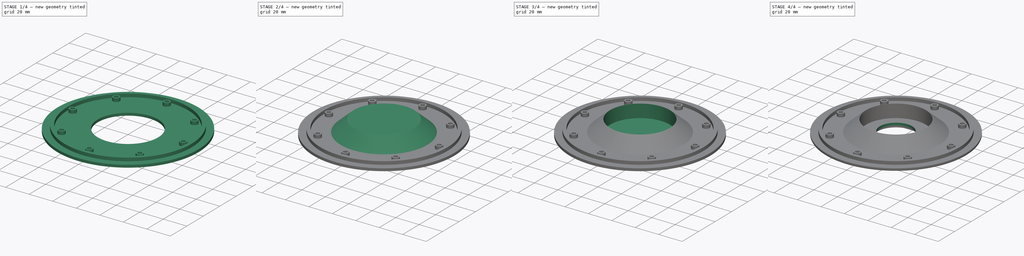
[diagram: build sequence overview — one tinted view per stage of 4, left to right]
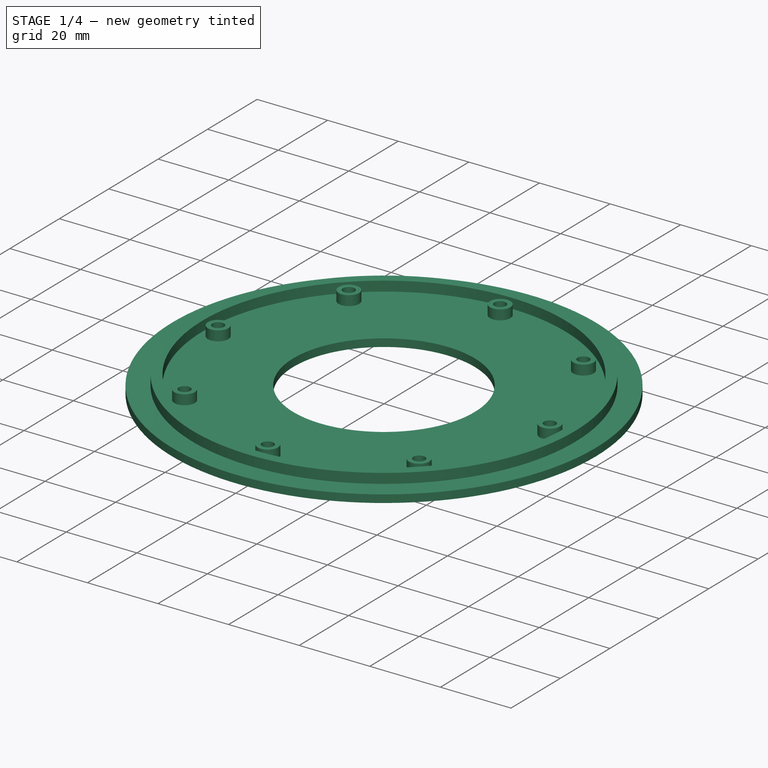
[diagram: stage 1 of 4 — iso view after this stage's code; geometry added in this stage tinted green]
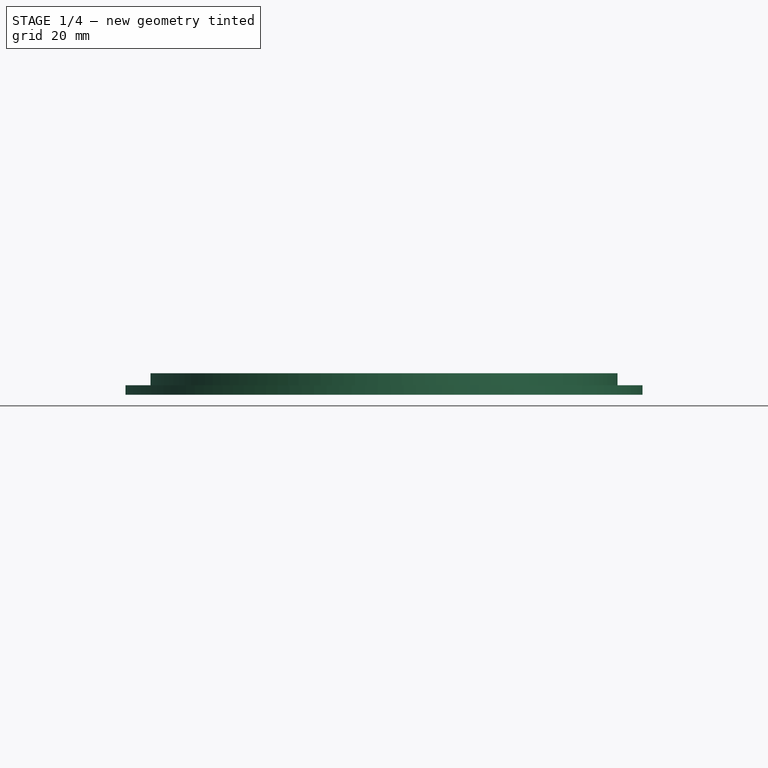
[diagram: stage 1 of 4 — front view after this stage's code; geometry added in this stage tinted green]
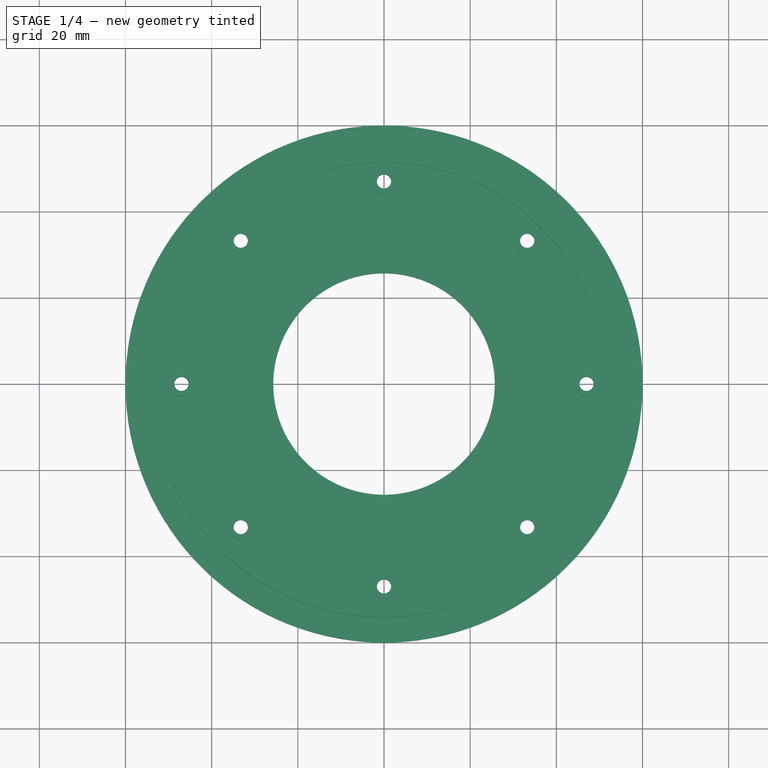
[diagram: stage 1 of 4 — top view after this stage's code; geometry added in this stage tinted green]
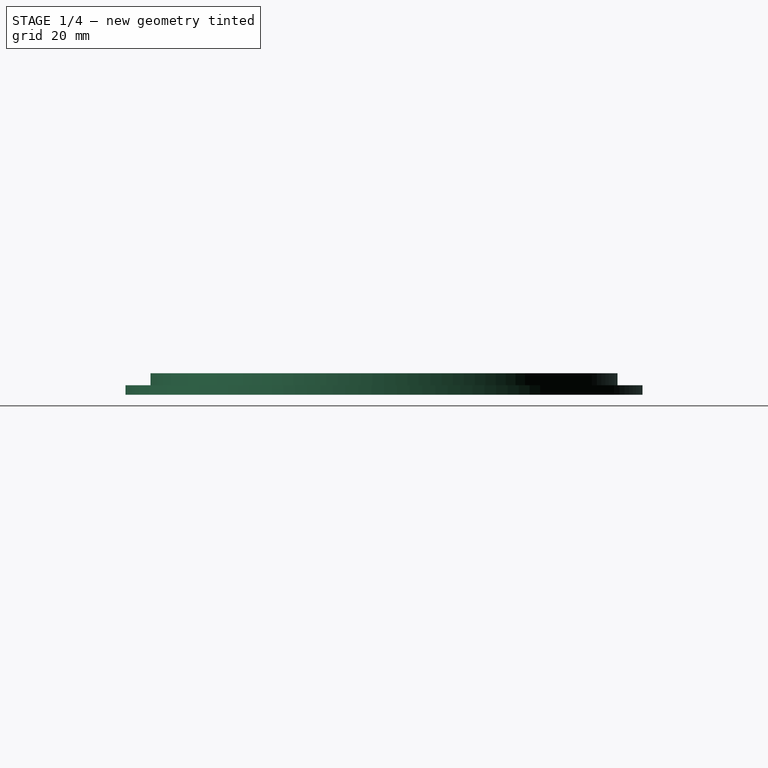
[diagram: stage 1 of 4 — right view after this stage's code; geometry added in this stage tinted green]
FCSTD DOCUMENT  (FreeCAD 0.20R29177 +426 (Git))
Label: feeder-top
License: All rights reserved
LicenseURL: http://en.wikipedia.org/wiki/All_rights_reserved
objects: PartDesign::SubtractiveCylinder×3, Sketcher::SketchObject×2, PartDesign::Pad×2, PartDesign::AdditiveCylinder×2, PartDesign::AdditiveCone×1, PartDesign::SubtractiveCone×1, PartDesign::Fillet×1, PartDesign::Body×1
note: 23 computed .brp shape members not serialized (recipe doc carries the construction recipe); baked Part::Feature solids carry a one-line shape summary decoded from their .brp

FEATURE [Sketcher::SketchObject] Sketch
  FullyConstrained = true
  MapMode = 5
  Support = -> [XY_Plane]
  expr: Constraints[43] = 94 / 2
  sketch-geometry (18):
    g0: Circle CenterX=0 CenterY=0 CenterZ=0 NormalX=0 NormalY=0 NormalZ=1 AngleXU=0 Radius=60
    g1: Circle CenterX=0 CenterY=0 CenterZ=0 NormalX=0 NormalY=0 NormalZ=1 AngleXU=0 Radius=25.7
    g2: LineSegment StartX=0 StartY=0 StartZ=0 EndX=0 EndY=47 EndZ=0
    g3: LineSegment StartX=0 StartY=0 StartZ=0 EndX=33.234 EndY=33.234 EndZ=0
    g4: LineSegment StartX=0 StartY=0 StartZ=0 EndX=47 EndY=0 EndZ=0
    g5: LineSegment StartX=0 StartY=0 StartZ=0 EndX=33.234 EndY=-33.234 EndZ=0
    g6: LineSegment StartX=0 StartY=0 StartZ=0 EndX=0 EndY=-47 EndZ=0
    g7: LineSegment StartX=0 StartY=0 StartZ=0 EndX=-33.234 EndY=-33.234 EndZ=0
    g8: LineSegment StartX=0 StartY=0 StartZ=0 EndX=-47 EndY=0 EndZ=0
    g9: LineSegment StartX=0 StartY=0 StartZ=0 EndX=-33.234 EndY=33.234 EndZ=0
    g10: Circle CenterX=0 CenterY=47 CenterZ=0 NormalX=0 NormalY=0 NormalZ=1 AngleXU=0 Radius=1.75
    g11: Circle CenterX=33.234 CenterY=33.234 CenterZ=0 NormalX=0 NormalY=0 NormalZ=1 AngleXU=0 Radius=1.75
    g12: Circle CenterX=47 CenterY=0 CenterZ=0 NormalX=0 NormalY=0 NormalZ=1 AngleXU=0 Radius=1.75
    g13: Circle CenterX=33.234 CenterY=-33.234 CenterZ=0 NormalX=0 NormalY=0 NormalZ=1 AngleXU=0 Radius=1.75
    g14: Circle CenterX=0 CenterY=-47 CenterZ=0 NormalX=0 NormalY=0 NormalZ=1 AngleXU=0 Radius=1.75
    g15: Circle CenterX=-33.234 CenterY=-33.234 CenterZ=0 NormalX=0 NormalY=0 NormalZ=1 AngleXU=0 Radius=1.75
    g16: Circle CenterX=-47 CenterY=0 CenterZ=0 NormalX=0 NormalY=0 NormalZ=1 AngleXU=0 Radius=1.75
    g17: Circle CenterX=-33.234 CenterY=33.234 CenterZ=0 NormalX=0 NormalY=0 NormalZ=1 AngleXU=0 Radius=1.75
  constraints (44):
    c: Coincident(g0,g-1)
    c: Diameter(g0) = 120
    c: Coincident(g1,g0)
    c: Diameter(g1) = 51.4
    c: Coincident(g2,g0)
    c: PointOnObject(g2,g-2)
    c: Coincident(g3,g0)
    c: Coincident(g4,g0)
    c: PointOnObject(g4,g-1)
    c: Coincident(g5,g0)
    c: Coincident(g6,g0)
    c: PointOnObject(g6,g-2)
    c: Coincident(g7,g0)
    c: Coincident(g8,g0)
    c: PointOnObject(g8,g-1)
    c: Coincident(g9,g0)
    c: Coincident(g10,g2)
    c: Coincident(g11,g3)
    c: Coincident(g12,g4)
    c: Coincident(g13,g5)
    c: Coincident(g14,g6)
    c: Coincident(g15,g7)
    c: Coincident(g16,g8)
    c: Coincident(g17,g9)
    c: Equal(g10,g11)
    c: Equal(g11,g12)
    c: Equal(g12,g13)
    c: Equal(g13,g14)
    c: Equal(g14,g15)
    c: Equal(g15,g16)
    c: Equal(g16,g17)
    c: Equal(g2,g3)
    c: Equal(g3,g4)
    c: Equal(g4,g5)
    c: Equal(g5,g6)
    c: Equal(g6,g7)
    c: Equal(g7,g8)
    c: Equal(g8,g9)
    c: Angle(g3,g2) = 0.785398
    c: Angle(g5,g4) = 0.785398
    c: Angle(g7,g6) = 0.785398
    c: Angle(g9,g8) = 0.785398
    c: Diameter(g10) = 3.5
    c: DistanceY(g2,g2) = 47
FEATURE [PartDesign::Pad] Pad
  Direction = (0,0,1)
  Length = 2.2
  Length2 = 10
  Profile = -> Sketch
  ReferenceAxis = -> Sketch [N_Axis]
  Type = 0
FEATURE [Sketcher::SketchObject] Sketch001
  FullyConstrained = true
  MapMode = 5
  Support = -> [XY_Plane]
  expr: Constraints[59] = 94 / 2
  sketch-geometry (26):
    g0: Circle CenterX=0 CenterY=0 CenterZ=0 NormalX=0 NormalY=0 NormalZ=1 AngleXU=0 Radius=54.2
    g1: Circle CenterX=0 CenterY=0 CenterZ=0 NormalX=0 NormalY=0 NormalZ=1 AngleXU=0 Radius=51.4
    g2: LineSegment StartX=0 StartY=0 StartZ=0 EndX=0 EndY=47 EndZ=0
    g3: LineSegment StartX=0 StartY=0 StartZ=0 EndX=33.234 EndY=33.234 EndZ=0
    g4: LineSegment StartX=0 StartY=0 StartZ=0 EndX=47 EndY=0 EndZ=0
    g5: LineSegment StartX=0 StartY=0 StartZ=0 EndX=33.234 EndY=-33.234 EndZ=0
    g6: LineSegment StartX=0 StartY=0 StartZ=0 EndX=0 EndY=-47 EndZ=0
    g7: LineSegment StartX=0 StartY=0 StartZ=0 EndX=-33.234 EndY=-33.234 EndZ=0
    g8: LineSegment StartX=0 StartY=0 StartZ=0 EndX=-47 EndY=0 EndZ=0
    g9: LineSegment StartX=0 StartY=0 StartZ=0 EndX=-33.234 EndY=33.234 EndZ=0
    g10: Circle CenterX=0 CenterY=47 CenterZ=0 NormalX=0 NormalY=0 NormalZ=1 AngleXU=0 Radius=1.65
    g11: Circle CenterX=0 CenterY=47 CenterZ=0 NormalX=0 NormalY=0 NormalZ=1 AngleXU=0 Radius=2.9
    g12: Circle CenterX=33.234 CenterY=33.234 CenterZ=0 NormalX=0 NormalY=0 NormalZ=1 AngleXU=0 Radius=1.65
    g13: Circle CenterX=33.234 CenterY=33.234 CenterZ=0 NormalX=0 NormalY=0 NormalZ=1 AngleXU=0 Radius=2.9
    g14: Circle CenterX=47 CenterY=0 CenterZ=0 NormalX=0 NormalY=0 NormalZ=1 AngleXU=0 Radius=1.65
    g15: Circle CenterX=47 CenterY=0 CenterZ=0 NormalX=0 NormalY=0 NormalZ=1 AngleXU=0 Radius=2.9
    g16: Circle CenterX=33.234 CenterY=-33.234 CenterZ=0 NormalX=0 NormalY=0 NormalZ=1 AngleXU=0 Radius=1.65
    g17: Circle CenterX=33.234 CenterY=-33.234 CenterZ=0 NormalX=0 NormalY=0 NormalZ=1 AngleXU=0 Radius=2.9
    g18: Circle CenterX=0 CenterY=-47 CenterZ=0 NormalX=0 NormalY=0 NormalZ=1 AngleXU=0 Radius=1.65
    g19: Circle CenterX=0 CenterY=-47 CenterZ=0 NormalX=0 NormalY=0 NormalZ=1 AngleXU=0 Radius=2.9
    g20: Circle CenterX=-33.234 CenterY=-33.234 CenterZ=0 NormalX=0 NormalY=0 NormalZ=1 AngleXU=0 Radius=1.65
    g21: Circle CenterX=-33.234 CenterY=-33.234 CenterZ=0 NormalX=0 NormalY=0 NormalZ=1 AngleXU=0 Radius=2.9
    g22: Circle CenterX=-47 CenterY=0 CenterZ=0 NormalX=0 NormalY=0 NormalZ=1 AngleXU=0 Radius=1.65
    g23: Circle CenterX=-47 CenterY=0 CenterZ=0 NormalX=0 NormalY=0 NormalZ=1 AngleXU=0 Radius=2.9
    g24: Circle CenterX=-33.234 CenterY=33.234 CenterZ=0 NormalX=0 NormalY=0 NormalZ=1 AngleXU=0 Radius=1.65
    g25: Circle CenterX=-33.234 CenterY=33.234 CenterZ=0 NormalX=0 NormalY=0 NormalZ=1 AngleXU=0 Radius=2.9
  constraints (60):
    c: Coincident(g0,g-1)
    c: Coincident(g1,g0)
    c: Diameter(g0) = 108.4
    c: Diameter(g1) = 102.8
    c: Coincident(g2,g0)
    c: PointOnObject(g2,g-2)
    c: Coincident(g3,g0)
    c: Coincident(g4,g0)
    c: PointOnObject(g4,g-1)
    c: Coincident(g5,g0)
    c: Coincident(g6,g0)
    c: PointOnObject(g6,g-2)
    c: Coincident(g7,g0)
    c: Coincident(g8,g0)
    c: PointOnObject(g8,g-1)
    c: Coincident(g9,g0)
    c: Coincident(g10,g2)
    c: Coincident(g11,g10)
    c: Coincident(g12,g3)
    c: Coincident(g13,g12)
    c: Coincident(g14,g4)
    c: Coincident(g15,g14)
    c: Coincident(g16,g5)
    c: Coincident(g17,g16)
    c: Coincident(g18,g6)
    c: Coincident(g19,g18)
    c: Coincident(g20,g7)
    c: Coincident(g21,g20)
    c: Coincident(g22,g8)
    c: Coincident(g23,g22)
    c: Coincident(g24,g9)
    c: Coincident(g25,g24)
    c: Equal(g10,g12)
    c: Equal(g12,g14)
    c: Equal(g14,g16)
    c: Equal(g16,g18)
    c: Equal(g18,g20)
    c: Equal(g20,g22)
    c: Equal(g22,g24)
    c: Equal(g11,g13)
    c: Equal(g13,g15)
    c: Equal(g15,g17)
    c: Equal(g17,g19)
    c: Equal(g19,g21)
    c: Equal(g21,g23)
    c: Equal(g23,g25)
    c: Equal(g2,g3)
    c: Equal(g3,g4)
    c: Equal(g4,g5)
    c: Equal(g5,g6)
    c: Equal(g6,g7)
    c: Equal(g7,g8)
    c: Equal(g8,g9)
    c: Angle(g3,g2) = 0.785398
    c: Angle(g5,g4) = 0.785398
    c: Angle(g7,g6) = 0.785398
    c: Angle(g9,g8) = 0.785398
    c: Diameter(g10) = 3.3
    c: Diameter(g11) = 5.8
    c: DistanceY(g2,g2) = 47
FEATURE [PartDesign::Pad] Pad001
  BaseFeature = -> Pad
  Direction = (0,0,1)
  Length = 2.8
  Length2 = 10
  Offset = 2.8
  Profile = -> Sketch001
  ReferenceAxis = -> Sketch001 [N_Axis]
  Type = 3
  UpToFace = -> Pad [Face12]
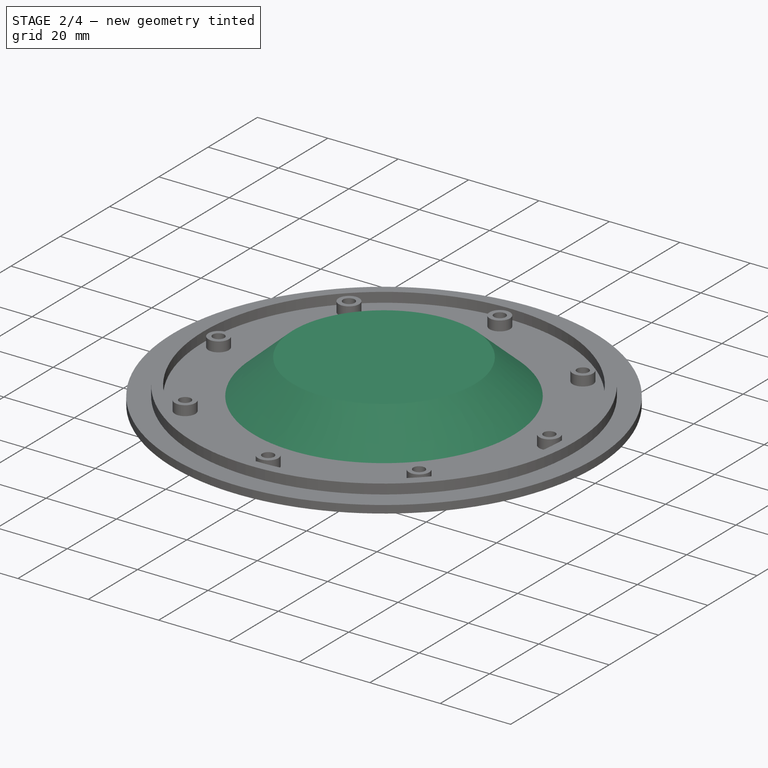
[diagram: stage 2 of 4 — iso view after this stage's code; geometry added in this stage tinted green]
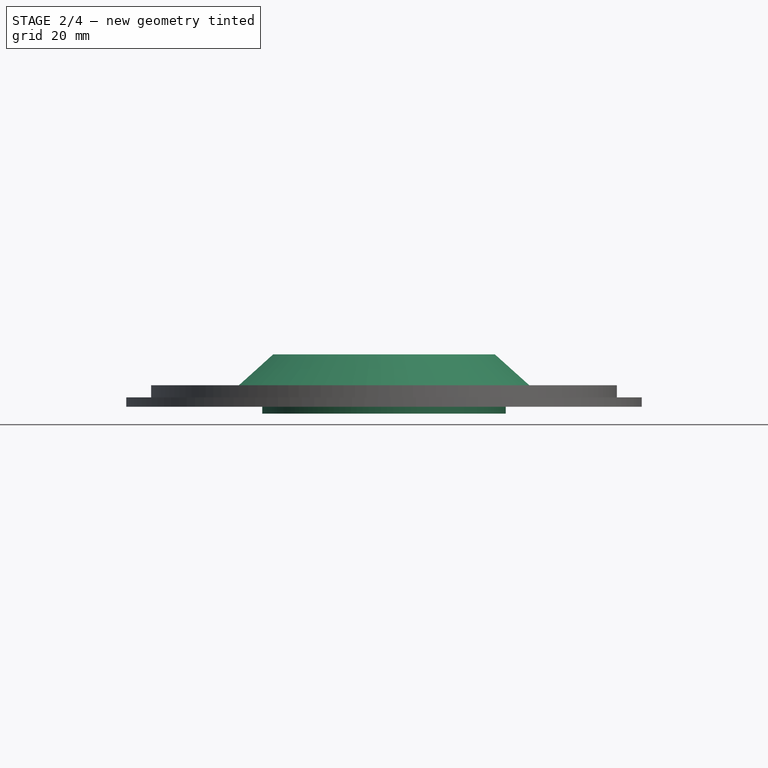
[diagram: stage 2 of 4 — front view after this stage's code; geometry added in this stage tinted green]
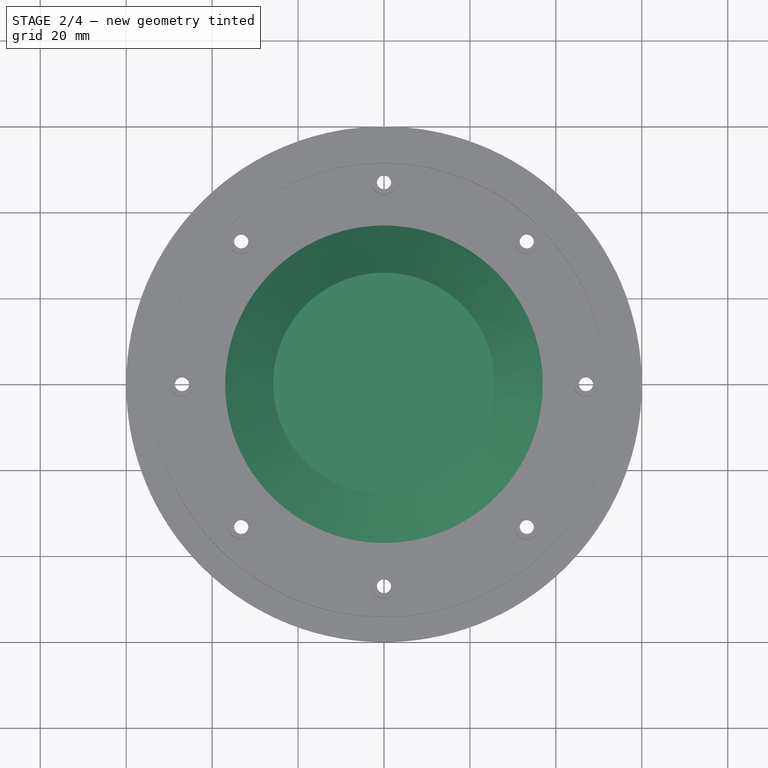
[diagram: stage 2 of 4 — top view after this stage's code; geometry added in this stage tinted green]
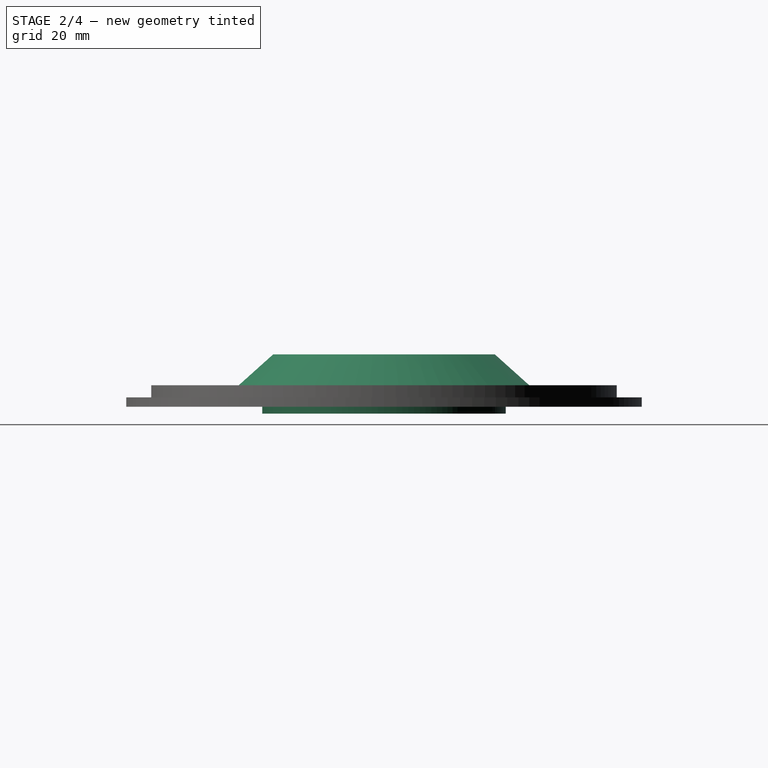
[diagram: stage 2 of 4 — right view after this stage's code; geometry added in this stage tinted green]
FEATURE [PartDesign::AdditiveCone] Cone
  Angle = 360
  AttacherType = Attacher::AttachEngine3D
  BaseFeature = -> Pad001
  Height = 10
  MapMode = 5
  Placement = pos=(0,0,2.2) rot=(0,0,1;0rad)
  Radius1 = 36.95
  Radius2 = 25.8
  Support = -> [Pad001]
  expr: Radius1 = 73.90000000000001 / 2
  expr: Radius2 = 51.6 / 2
FEATURE [PartDesign::SubtractiveCone] Cone001
  Angle = 360
  AttacherType = Attacher::AttachEngine3D
  AttachmentOffset = pos=(0,0,-7.1) rot=(0,0,1;0rad)
  BaseFeature = -> Cone
  Height = 7.1
  MapMode = 5
  Placement = pos=(0,0,7.1) rot=(1,0,0;3.14159rad)
  Radius1 = 28.4
  Radius2 = 36.65
  Support = -> [Cone]
  expr: Height = 8.800000000000001 - 4.1 + 2.4
  expr: Radius1 = 56.8 / 2
  expr: Radius2 = 73.3 / 2
FEATURE [PartDesign::AdditiveCylinder] Cylinder
  Angle = 360
  AttacherType = Attacher::AttachEngine3D
  BaseFeature = -> Cone001
  FirstAngle = 0
  Height = 8.7
  MapMode = 5
  Placement = pos=(0,0,7.1) rot=(1,0,0;3.14159rad)
  Radius = 28.35
  SecondAngle = 0
  Support = -> [Cone001]
  expr: Radius = 56.7 / 2
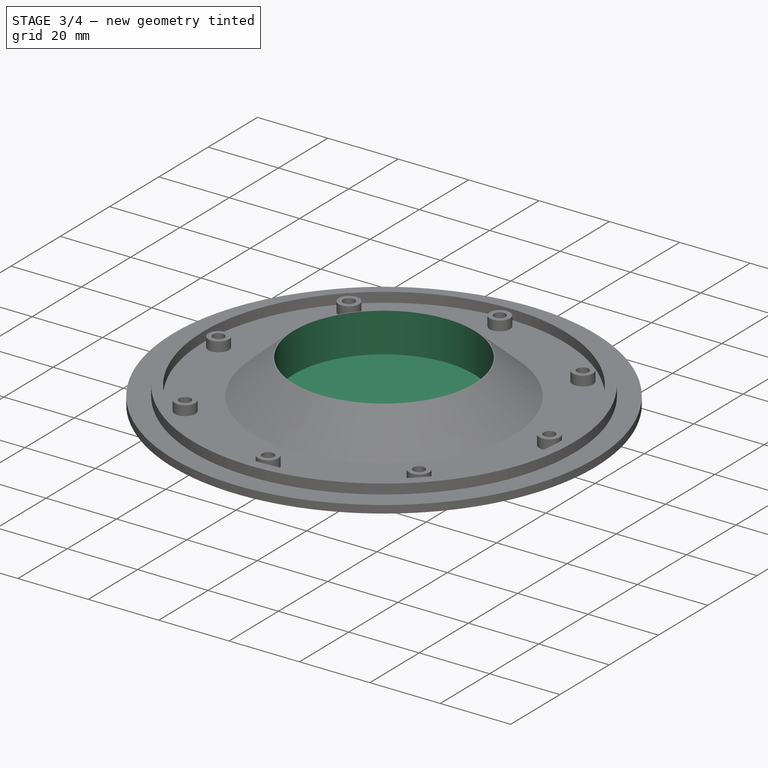
[diagram: stage 3 of 4 — iso view after this stage's code; geometry added in this stage tinted green]
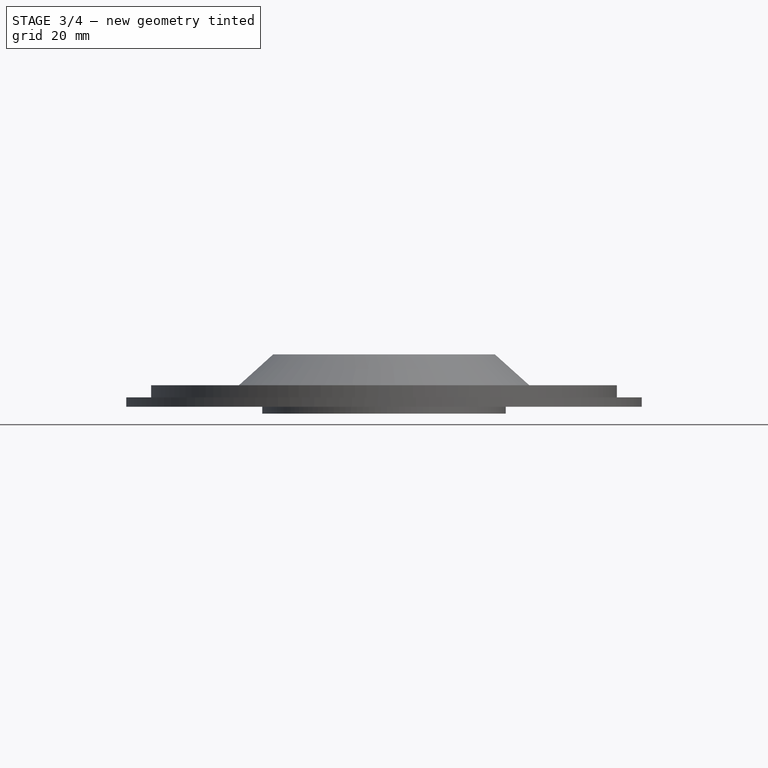
[diagram: stage 3 of 4 — front view after this stage's code; geometry added in this stage tinted green]
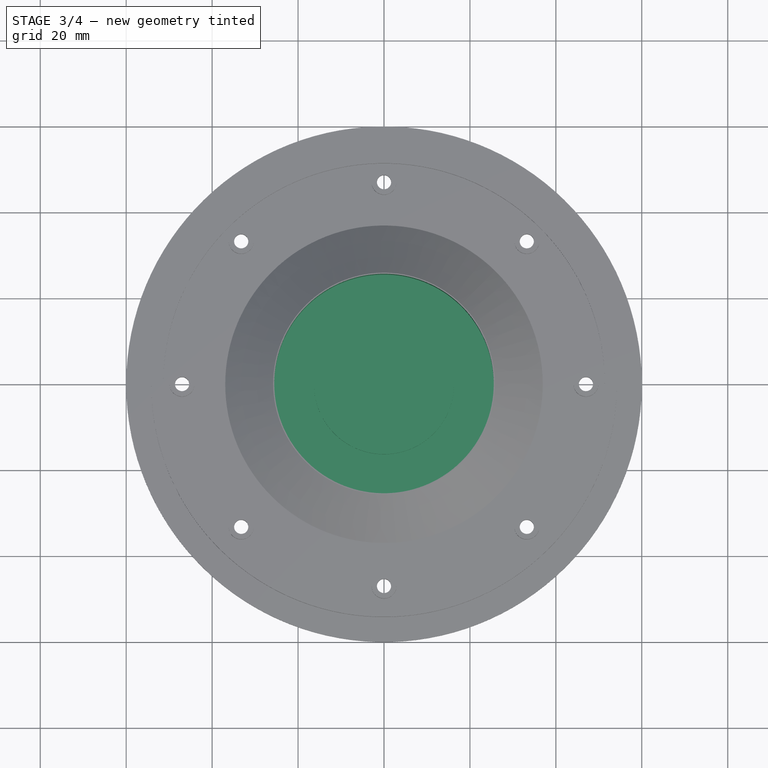
[diagram: stage 3 of 4 — top view after this stage's code; geometry added in this stage tinted green]
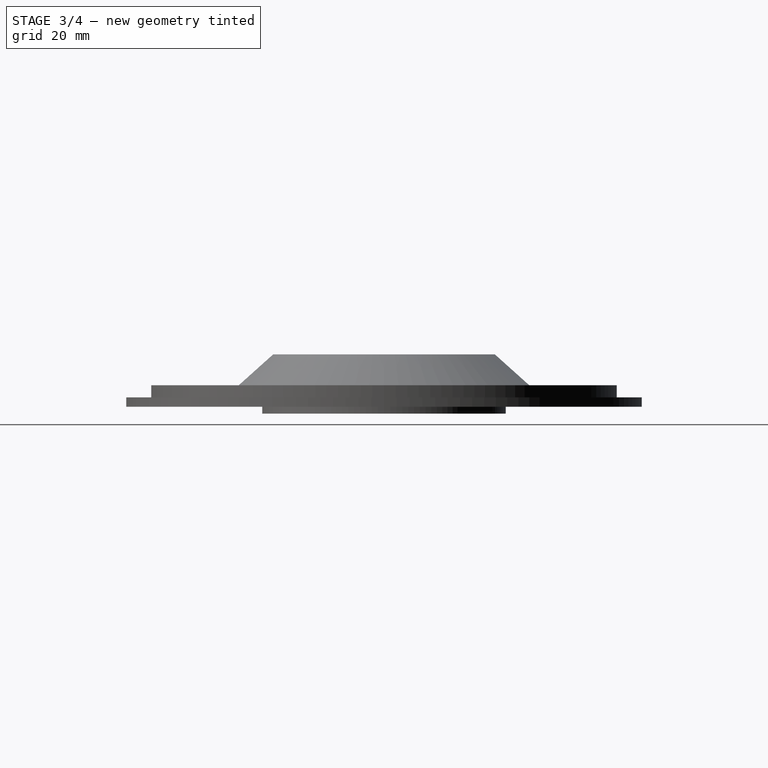
[diagram: stage 3 of 4 — right view after this stage's code; geometry added in this stage tinted green]
FEATURE [PartDesign::SubtractiveCylinder] Cylinder001
  Angle = 360
  AttacherType = Attacher::AttachEngine3D
  AttachmentOffset = pos=(0,0,-11.2) rot=(0,0,1;0rad)
  BaseFeature = -> Cylinder
  FirstAngle = 0
  Height = 13.2
  MapMode = 5
  Placement = pos=(0,1.5e-15,1) rot=(0,0,1;0rad)
  Radius = 25.55
  SecondAngle = 0
  Support = -> [Cylinder]
  expr: Radius = 51.1 / 2
FEATURE [PartDesign::SubtractiveCylinder] Cylinder002
  Angle = 360
  AttacherType = Attacher::AttachEngine3D
  AttachmentOffset = pos=(0,0,-2.6) rot=(0,0,1;0rad)
  BaseFeature = -> Cylinder001
  FirstAngle = 0
  Height = 2.6
  MapMode = 5
  Placement = pos=(0,1.5e-15,1) rot=(1,0,0;3.14159rad)
  Radius = 15.85
  SecondAngle = 0
  Support = -> [Cylinder001]
  expr: Radius = 31.7 / 2
FEATURE [PartDesign::AdditiveCylinder] Cylinder003
  Angle = 360
  AttacherType = Attacher::AttachEngine3D
  BaseFeature = -> Cylinder002
  FirstAngle = 0
  Height = 2
  MapMode = 5
  Placement = pos=(0,1.5e-15,1) rot=(0,0,1;0rad)
  Radius = 16.3
  SecondAngle = 0
  Support = -> [Cylinder002]
  expr: Radius = 32.6 / 2
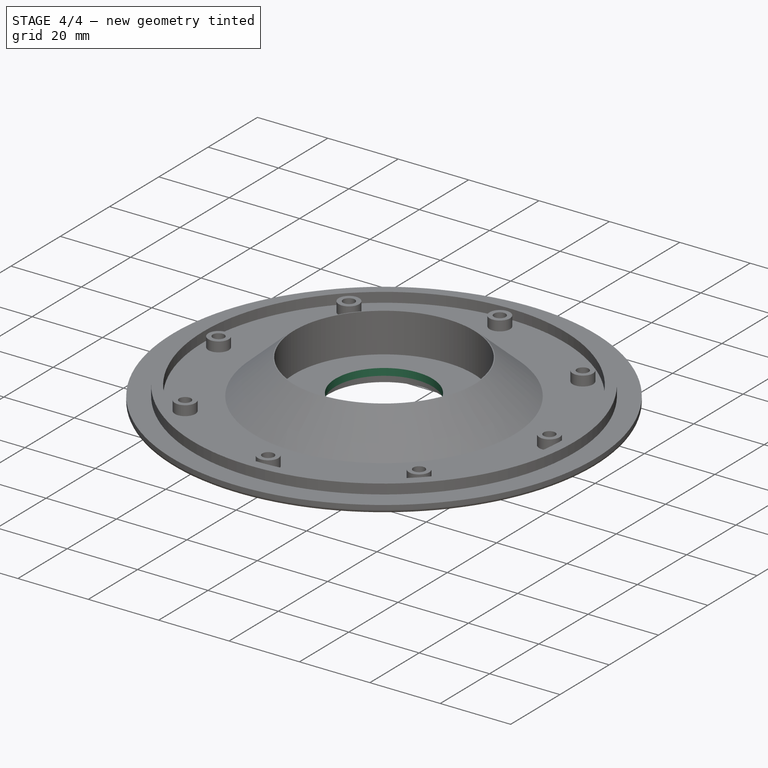
[diagram: stage 4 of 4 — iso view after this stage's code; geometry added in this stage tinted green]
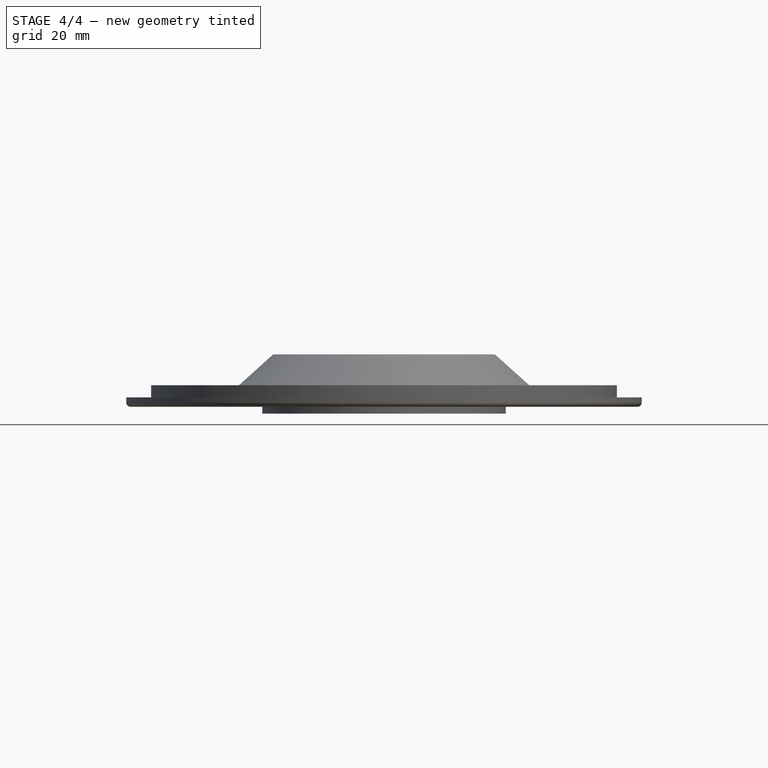
[diagram: stage 4 of 4 — front view after this stage's code; geometry added in this stage tinted green]
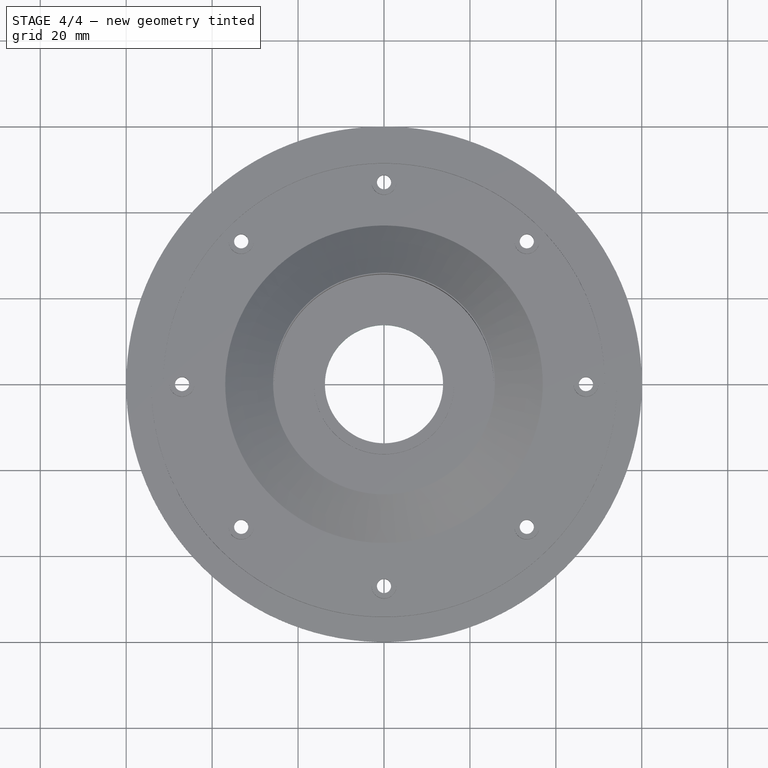
[diagram: stage 4 of 4 — top view after this stage's code; geometry added in this stage tinted green]
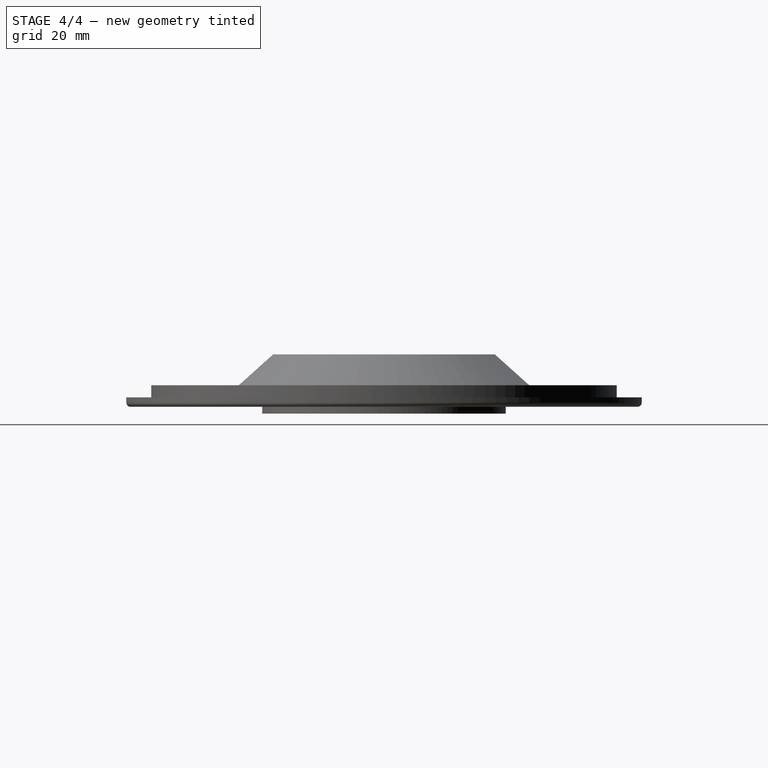
[diagram: stage 4 of 4 — right view after this stage's code; geometry added in this stage tinted green]
FEATURE [PartDesign::SubtractiveCylinder] Cylinder004
  Angle = 360
  AttacherType = Attacher::AttachEngine3D
  AttachmentOffset = pos=(0,0,-5) rot=(0,0,1;0rad)
  BaseFeature = -> Cylinder003
  FirstAngle = 0
  Height = 10
  MapMode = 5
  Placement = pos=(0,1.9e-15,-2) rot=(0,0,1;0rad)
  Radius = 13.75
  SecondAngle = 0
  Support = -> [Cylinder003]
  expr: Radius = 27.5 / 2
FEATURE [PartDesign::Fillet] Fillet
  Base = -> Cylinder004 [Face2]
  BaseFeature = -> Cylinder004
  Placement = pos=(0,1.9e-15,-2) rot=(0,0,1;0rad)
  Radius = 1
  SupportTransform = false
  UseAllEdges = false
FEATURE [PartDesign::Body] Body
  Group = -> [Sketch,Pad,Sketch001,Pad001,Cone,Cone001,Cylinder,Cylinder001,Cylinder002,Cylinder003,Cylinder004,Fillet]
  Origin = -> Origin
  Tip = -> Fillet
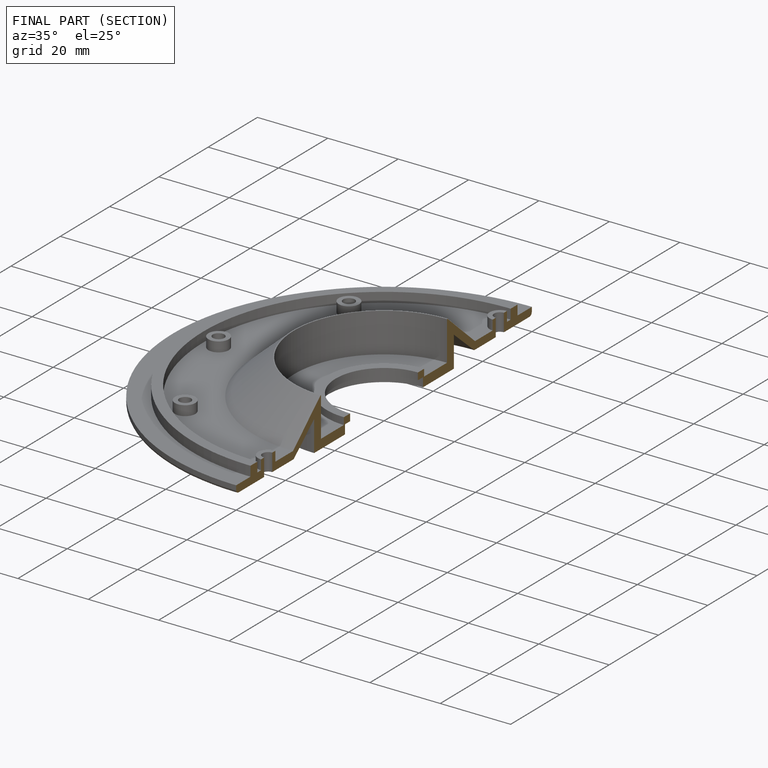
[diagram: finished part — half-section view (interior)]
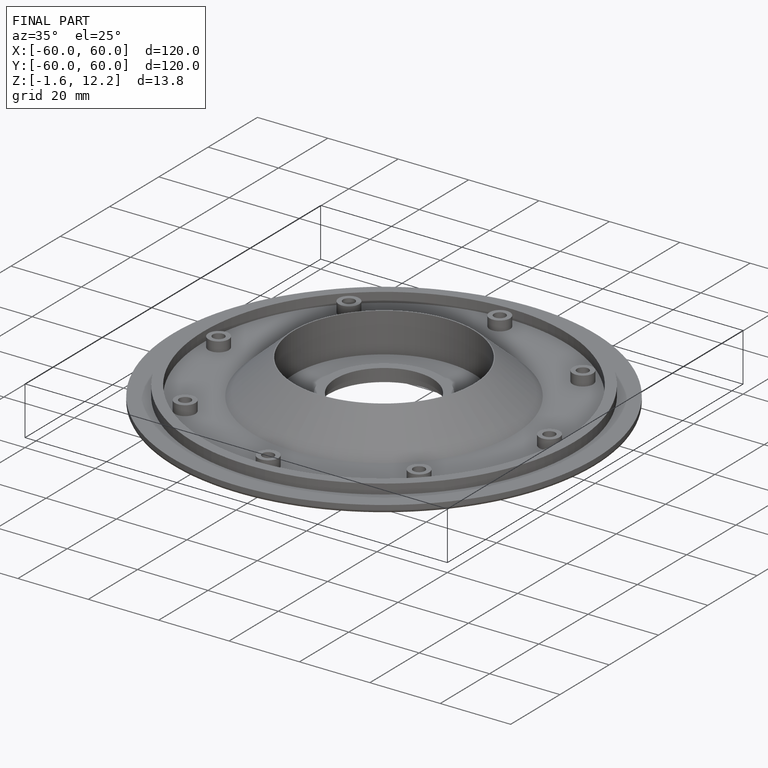
[diagram: finished part — iso view with bounding-box wireframe]
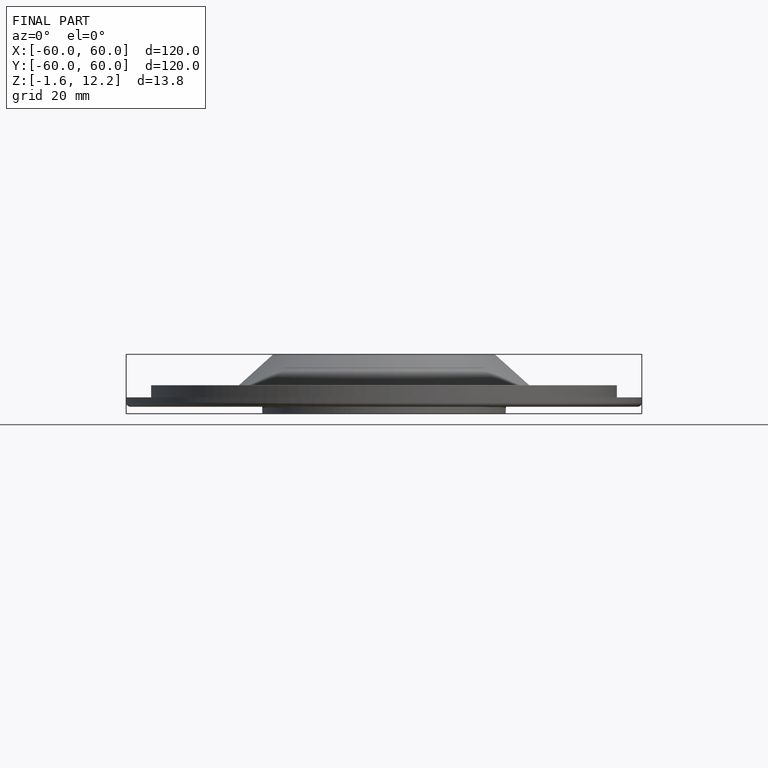
[diagram: finished part — front view with bounding-box wireframe]
